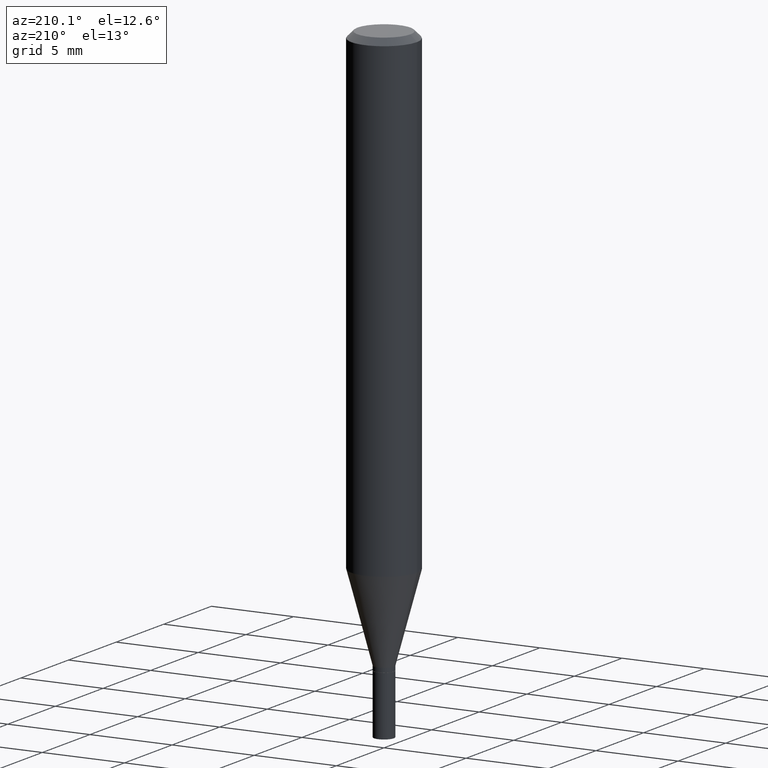
[diagram: clean part render]
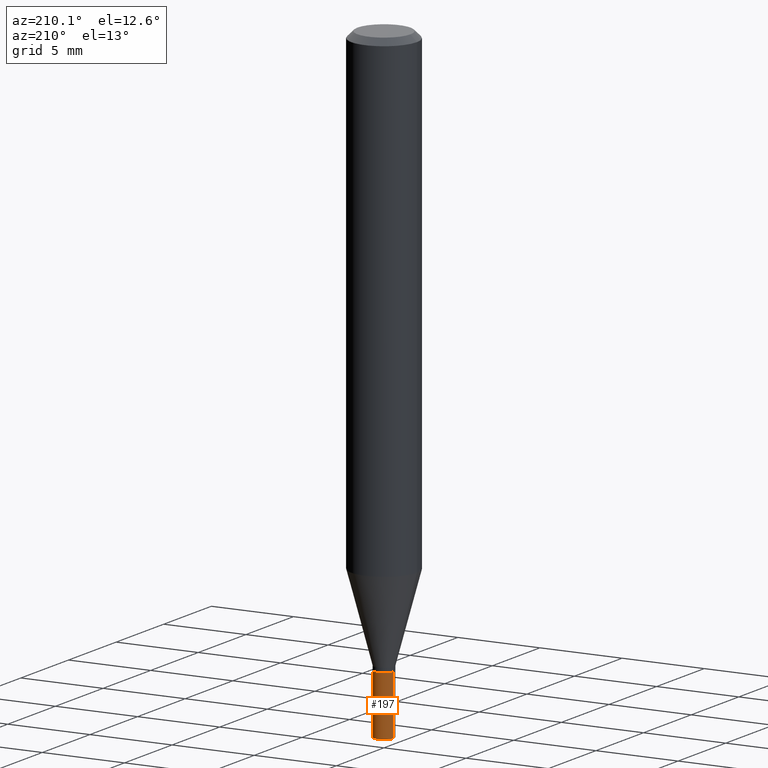
[diagram: same view with one face highlighted and labeled with its STEP entity id]
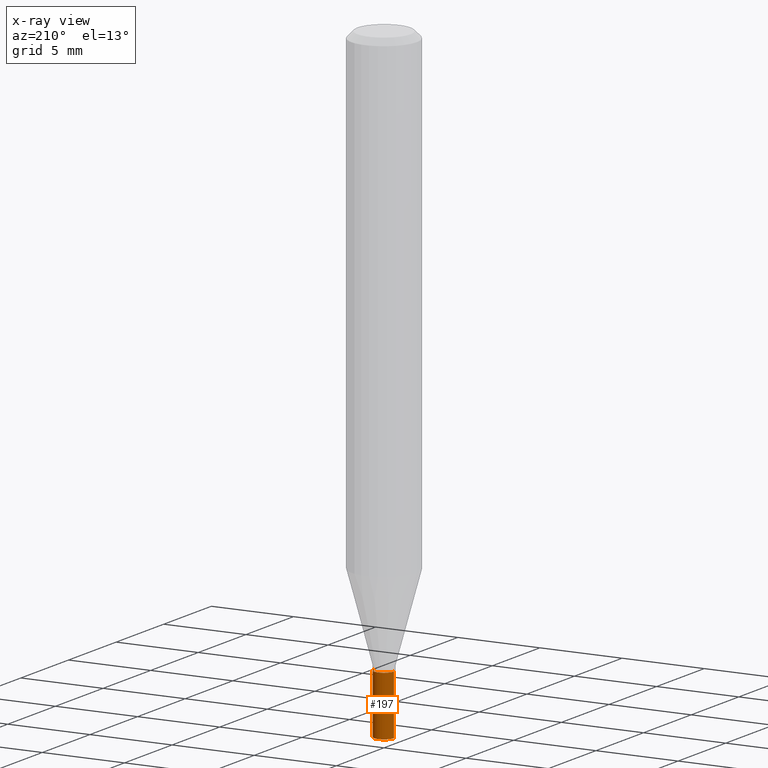
[diagram: x-ray of the same camera — body ghosted, the highlighted face saturated]
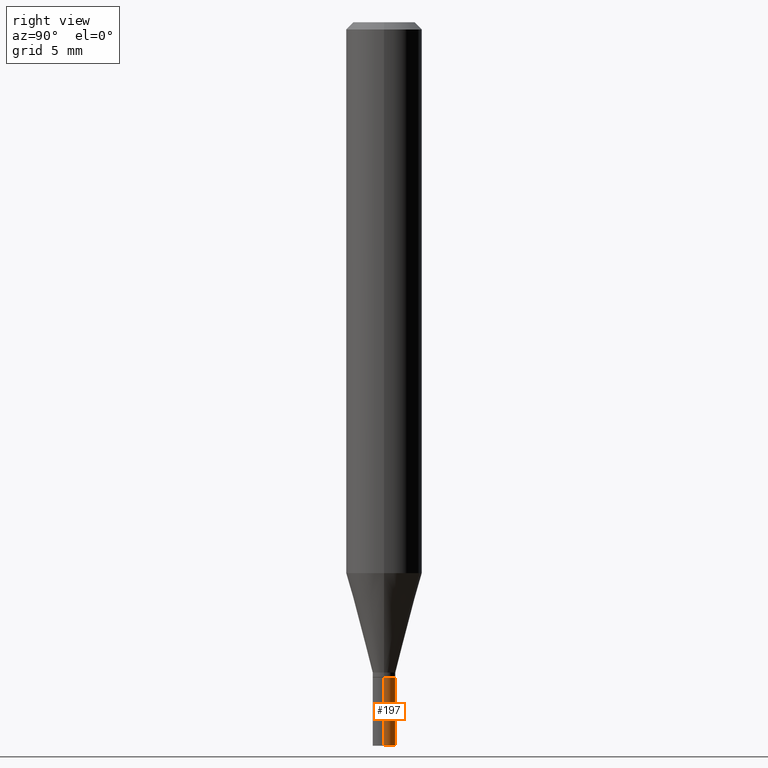
[diagram: same view with one face highlighted and labeled with its STEP entity id]
A machine part, auxiliary view. The second image highlights one B-rep face of the part: STEP entity #197.
The next image is the same camera in x-ray: the body ghosted, the highlighted face saturated — about 0% of this face is hidden behind the body in this view.
A second angle (right view) of the same face is appended — the face is thin or edge-on in the first view.
In plain terms, the highlighted cylindrical surface (edge-blend (fillet) strip) has radius 0.5994 mm, axis along (-0, 0, 1).
Its self-contained STEP definition (entity closure, byte-faithful):
#13 = VERTEX_POINT ( 'NONE', #121 ) ;
#20 = EDGE_CURVE ( 'NONE', #13, #52, #112, .T. ) ;
#29 = EDGE_LOOP ( 'NONE', ( #385, #163, #430, #454 ) ) ;
#39 = CIRCLE ( 'NONE', #126, 0.02360000000000000292 ) ;
#52 = VERTEX_POINT ( 'NONE', #190 ) ;
#56 = LINE ( 'NONE', #125, #240 ) ;
#68 = AXIS2_PLACEMENT_3D ( 'NONE', #251, #147, #406 ) ;
#96 = DIRECTION ( 'NONE',  ( -2.445468806185136877E-29, 3.491481338843145188E-15, 1.000000000000000000 ) ) ;
#98 = VECTOR ( 'NONE', #307, 39.37007874015748143 ) ;
#112 = CIRCLE ( 'NONE', #68, 0.02360000000000000292 ) ;
#121 = CARTESIAN_POINT ( 'NONE',  ( 0.02360000000000000292, -4.907277021744040592E-15, -1.358300000000000063 ) ) ;
#125 = CARTESIAN_POINT ( 'NONE',  ( -0.02360000000000000292, 1.676880856393836646E-16, -1.160868681300157803E-30 ) ) ;
#126 = AXIS2_PLACEMENT_3D ( 'NONE', #268, #165, #226 ) ;
#147 = DIRECTION ( 'NONE',  ( -2.445468806185136597E-29, 3.491481338843145583E-15, 1.000000000000000000 ) ) ;
#149 = EDGE_CURVE ( 'NONE', #378, #394, #39, .T. ) ;
#163 = ORIENTED_EDGE ( 'NONE', *, *, #164, .T. ) ;
#164 = EDGE_CURVE ( 'NONE', #394, #52, #56, .T. ) ;
#165 = DIRECTION ( 'NONE',  ( -2.445468806185136597E-29, 3.491481338843145583E-15, 1.000000000000000000 ) ) ;
#190 = CARTESIAN_POINT ( 'NONE',  ( -0.02360000000000000292, -4.822162469768297941E-15, -1.358300000000000063 ) ) ;
#196 = DIRECTION ( 'NONE',  ( -2.445468806185136597E-29, 3.491481338843145583E-15, 1.000000000000000000 ) ) ;
#197 = ADVANCED_FACE ( 'NONE', ( #261 ), #377, .T. ) ;
#226 = DIRECTION ( 'NONE',  ( 1.000000000000000000, -6.982962677686258033E-15, 0.000000000000000000 ) ) ;
#240 = VECTOR ( 'NONE', #96, 39.37007874015748143 ) ;
#251 = CARTESIAN_POINT ( 'NONE',  ( 3.321680279441271211E-29, -4.742479102550645133E-15, -1.358300000000000063 ) ) ;
#252 = EDGE_CURVE ( 'NONE', #378, #13, #301, .T. ) ;
#261 = FACE_OUTER_BOUND ( 'NONE', #29, .T. ) ;
#268 = CARTESIAN_POINT ( 'NONE',  ( 3.668203209277704895E-29, -5.237222008264718177E-15, -1.500000000000000222 ) ) ;
#301 = LINE ( 'NONE', #460, #98 ) ;
#307 = DIRECTION ( 'NONE',  ( -2.445468806185136877E-29, 3.491481338843145188E-15, 1.000000000000000000 ) ) ;
#339 = CARTESIAN_POINT ( 'NONE',  ( 0.000000000000000000, 0.000000000000000000, 0.000000000000000000 ) ) ;
#352 = DIRECTION ( 'NONE',  ( 1.000000000000000000, -6.982962677686267499E-15, 4.876176775795935793E-29 ) ) ;
#377 = CYLINDRICAL_SURFACE ( 'NONE', #423, 0.02360000000000000292 ) ;
#378 = VERTEX_POINT ( 'NONE', #395 ) ;
#385 = ORIENTED_EDGE ( 'NONE', *, *, #149, .T. ) ;
#394 = VERTEX_POINT ( 'NONE', #434 ) ;
#395 = CARTESIAN_POINT ( 'NONE',  ( 0.02360000000000000292, -5.402019927458114424E-15, -1.500000000000000222 ) ) ;
#406 = DIRECTION ( 'NONE',  ( 1.000000000000000000, -6.982962677686258033E-15, 0.000000000000000000 ) ) ;
#423 = AXIS2_PLACEMENT_3D ( 'NONE', #339, #196, #352 ) ;
#430 = ORIENTED_EDGE ( 'NONE', *, *, #20, .F. ) ;
#434 = CARTESIAN_POINT ( 'NONE',  ( -0.02360000000000000292, -4.822162469768297941E-15, -1.500000000000000222 ) ) ;
#454 = ORIENTED_EDGE ( 'NONE', *, *, #252, .F. ) ;
#460 = CARTESIAN_POINT ( 'NONE',  ( 0.02360000000000000292, -1.647979191933959273E-16, 1.150777719087840955E-30 ) ) ;